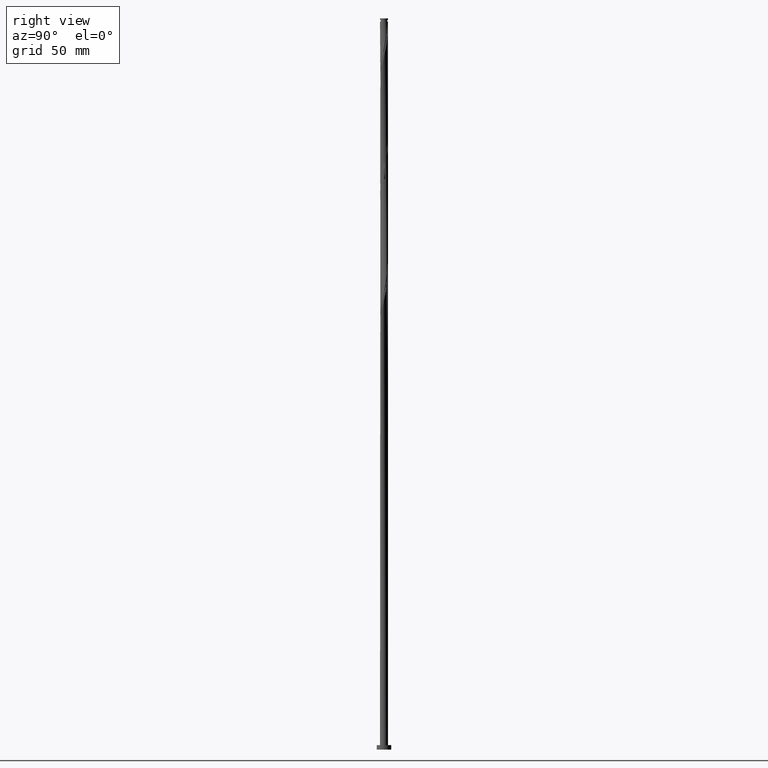
[diagram: clean part render]
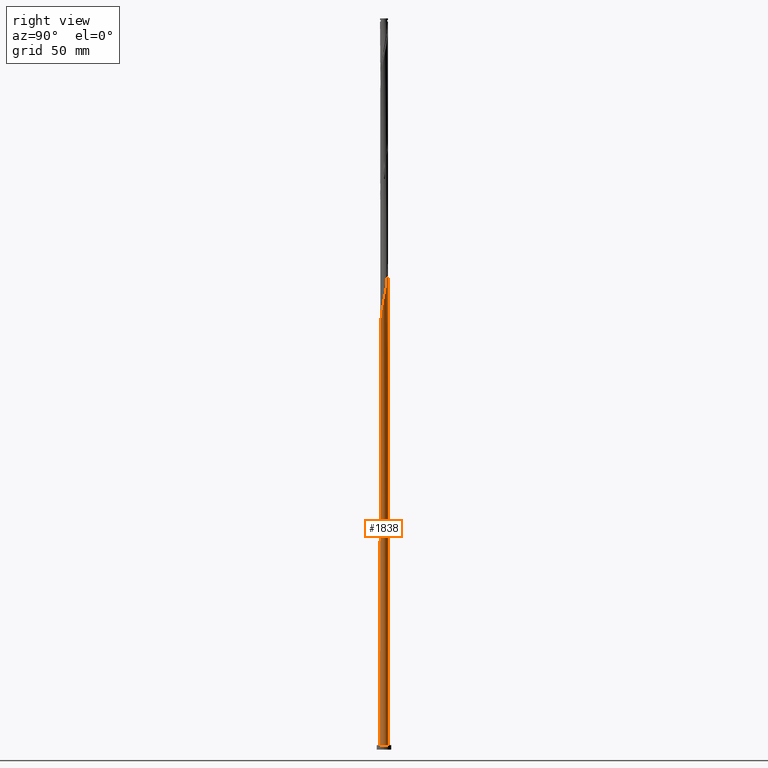
[diagram: same view with one face highlighted and labeled with its STEP entity id]
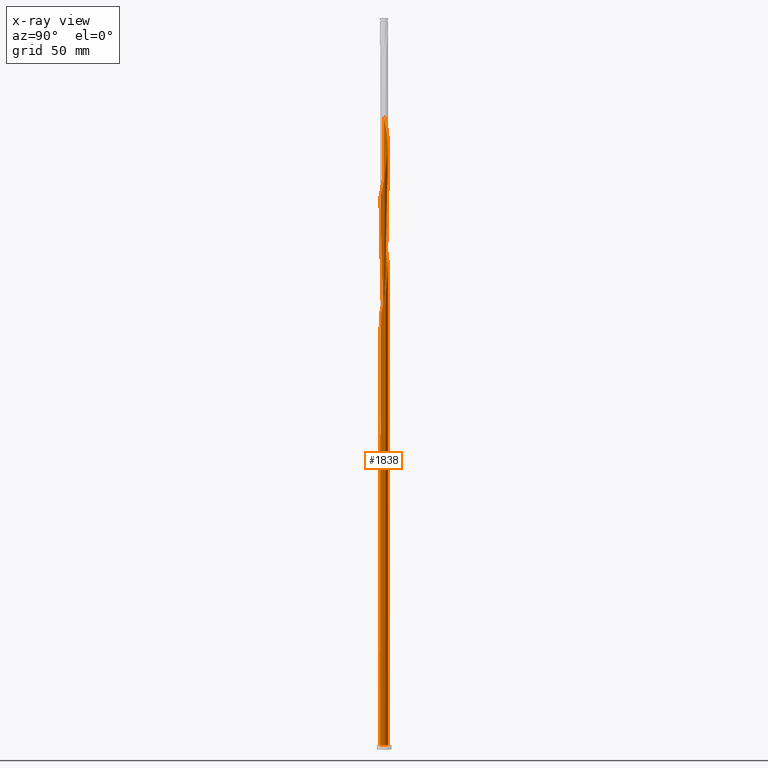
[diagram: x-ray of the same camera — body ghosted, the highlighted face saturated]
A machine part, right view. The second image highlights one B-rep face of the part: STEP entity #1838.
The next image is the same camera in x-ray: the body ghosted, the highlighted face saturated — about 0% of this face is hidden behind the body in this view.
In plain terms, the highlighted cylindrical surface (bore or boss wall) has radius 2.75 mm, axis along (-0, -0, -1).
Its self-contained STEP definition (entity closure, byte-faithful):
#3 = CARTESIAN_POINT ( 'NONE',  ( -0.5472430904086456049, 2.695000000000002505, 247.8195904447323414 ) ) ;
#4 = CARTESIAN_POINT ( 'NONE',  ( -1.312315348961077710, 2.431807739867426044, 418.3925071113991407 ) ) ;
#19 = DIRECTION ( 'NONE',  ( -1.000000000000000000, 0.000000000000000000, 0.000000000000000000 ) ) ;
#25 = EDGE_CURVE ( 'NONE', #1028, #1947, #87, .T. ) ;
#38 = EDGE_CURVE ( 'NONE', #1028, #1778, #1923, .T. ) ;
#43 = CARTESIAN_POINT ( 'NONE',  ( 2.748898739951862513, 0.2818087583610887070, 309.0175071113990271 ) ) ;
#54 = CARTESIAN_POINT ( 'NONE',  ( -0.2598896582776717423, -2.751057582879404606, 285.5800071113989702 ) ) ;
#64 = DIRECTION ( 'NONE',  ( 1.000000000000000000, 0.000000000000000000, 0.000000000000000000 ) ) ;
#70 = CARTESIAN_POINT ( 'NONE',  ( -0.5472430904086452719, 2.695000000000002061, 414.4862571113990839 ) ) ;
#78 = VERTEX_POINT ( 'NONE', #296 ) ;
#87 = CIRCLE ( 'NONE', #469, 2.750000000000000000 ) ;
#89 = ORIENTED_EDGE ( 'NONE', *, *, #1688, .F. ) ;
#103 = CARTESIAN_POINT ( 'NONE',  ( -2.544842576412060797, 1.042245777770506088, 344.1737571113989134 ) ) ;
#110 = ORIENTED_EDGE ( 'NONE', *, *, #148, .T. ) ;
#148 = EDGE_CURVE ( 'NONE', #717, #942, #1680, .T. ) ;
#151 = CARTESIAN_POINT ( 'NONE',  ( -1.292890894444388650, 2.442190327116361193, 256.9341737780657127 ) ) ;
#155 = CARTESIAN_POINT ( 'NONE',  ( -1.536918540760689789, 2.280434475942259898, 419.6945904447322846 ) ) ;
#171 = DIRECTION ( 'NONE',  ( -0.000000000000000000, -0.000000000000000000, -1.000000000000000000 ) ) ;
#184 = CARTESIAN_POINT ( 'NONE',  ( 1.042245777770505866, 2.544842576412060797, 323.3404237780655990 ) ) ;
#196 = CARTESIAN_POINT ( 'NONE',  ( -0.5257451596871463018, -2.699276204293580506, 367.6112571113990271 ) ) ;
#197 = CARTESIAN_POINT ( 'NONE',  ( 2.749978161415632449, 0.01095955004170716569, 307.7154237780657127 ) ) ;
#201 = CARTESIAN_POINT ( 'NONE',  ( -0.5257451596871463018, -2.699276204293580506, 284.2779237780656558 ) ) ;
#212 = CARTESIAN_POINT ( 'NONE',  ( -2.280434475942259898, -1.536918540760689789, 273.8612571113990271 ) ) ;
#226 =( BOUNDED_CURVE ( )  B_SPLINE_CURVE ( 2, ( #1640, #1211, #282, #1222, #274, #1064, #1957, #1517, #892, #1081, #603, #584, #1679, #151, #1201, #919, #1815, #1366, #1795, #434, #1805 ),
 .UNSPECIFIED., .F., .T. ) 
 B_SPLINE_CURVE_WITH_KNOTS ( ( 3, 2, 2, 2, 2, 2, 2, 2, 2, 2, 3 ),
 ( 0.9295286902180871502, 0.9296875000000000000, 0.9375000000000000000, 0.9453125000000000000, 0.9531250000000000000, 0.9609375000000000000, 0.9687500000000000000, 0.9765625000000000000, 0.9843750000000000000, 0.9921875000000000000, 1.000000000000000000 ),
 .UNSPECIFIED. ) 
 CURVE ( )  GEOMETRIC_REPRESENTATION_ITEM ( )  RATIONAL_B_SPLINE_CURVE ( ( 0.9089165573359829775, 0.9090019243628878476, 0.9090909090909797818, 0.9047133878838858889, 0.9090909090909797818, 0.9047133878838858889, 0.9090909090909797818, 0.9047133878838858889, 0.9090909090909797818, 0.9047133878838858889, 0.9090909090909797818, 0.9047133878838858889, 0.9090909090909797818, 0.9047133878838858889, 0.9090909090909797818, 0.9047133878838858889, 0.9090909090909797818, 0.9047133878838858889, 0.9090909090909797818, 0.9047133878838858889, 0.9090909090909797818 ) ) 
 REPRESENTATION_ITEM ( '' )  );
#227 = CARTESIAN_POINT ( 'NONE',  ( 2.699276204293580506, -0.5257451596871476340, 305.1112571113989702 ) ) ;
#232 = DIRECTION ( 'NONE',  ( -0.000000000000000000, -0.000000000000000000, -1.000000000000000000 ) ) ;
#245 = CARTESIAN_POINT ( 'NONE',  ( 0.5472430904086464931, 2.694999999999998508, 247.8195904447323414 ) ) ;
#246 = CARTESIAN_POINT ( 'NONE',  ( 2.442190327116362969, -1.292890894444393091, 384.5383404447323983 ) ) ;
#266 = CARTESIAN_POINT ( 'NONE',  ( -2.750000000000003997, -0.005479796779213286229, 266.0224136879194816 ) ) ;
#274 = CARTESIAN_POINT ( 'NONE',  ( -2.694999999999998952, 0.5472430904086462711, 268.6529237780657127 ) ) ;
#277 = ORIENTED_EDGE ( 'NONE', *, *, #822, .F. ) ;
#279 = CARTESIAN_POINT ( 'NONE',  ( -2.641101260048143828, -0.8126774224562044457, 353.2883404447323983 ) ) ;
#282 = CARTESIAN_POINT ( 'NONE',  ( -2.749978161415628009, 0.01095955004170898195, 271.2570904447323414 ) ) ;
#285 = CARTESIAN_POINT ( 'NONE',  ( -2.647494825707756849, 0.7916006610966208612, 262.1425071113990839 ) ) ;
#293 = FACE_OUTER_BOUND ( 'NONE', #1693, .T. ) ;
#296 = CARTESIAN_POINT ( 'NONE',  ( -2.750000000000003553, -4.752766352566343433E-17, 432.6627268000688673 ) ) ;
#301 = CARTESIAN_POINT ( 'NONE',  ( 2.699276204293580506, -0.5257451596871476340, 388.4445904447322278 ) ) ;
#305 = CARTESIAN_POINT ( 'NONE',  ( 2.280434475942259898, 1.536918540760690233, 315.5279237780656558 ) ) ;
#323 = CARTESIAN_POINT ( 'NONE',  ( 2.750000000000000000, 0.000000000000000000, 3.000000000000000000 ) ) ;
#330 = CARTESIAN_POINT ( 'NONE',  ( -2.442190327116363857, 1.292890894444391536, 426.2050071113990839 ) ) ;
#339 = CARTESIAN_POINT ( 'NONE',  ( -2.750000000000003553, -4.752766352566343433E-17, 432.6627268000688673 ) ) ;
#350 = CARTESIAN_POINT ( 'NONE',  ( -1.042245777770505866, -2.544842576412060797, 281.6737571113990271 ) ) ;
#357 = CARTESIAN_POINT ( 'NONE',  ( 1.062496385708641355, -2.536454499957784936, 375.4237571113990271 ) ) ;
#365 = CARTESIAN_POINT ( 'NONE',  ( 2.442190327116362969, -1.292890894444393091, 301.2050071113990839 ) ) ;
#401 = CARTESIAN_POINT ( 'NONE',  ( -0.5472430904086452719, 2.695000000000002061, 331.1529237780657127 ) ) ;
#410 = CARTESIAN_POINT ( 'NONE',  ( -0.01095955004170705641, 2.749978161415632449, 328.5487571113990271 ) ) ;
#414 = CARTESIAN_POINT ( 'NONE',  ( 1.536918540760689789, -2.280434475942259898, 378.0279237780657127 ) ) ;
#420 = ORIENTED_EDGE ( 'NONE', *, *, #25, .T. ) ;
#422 = CARTESIAN_POINT ( 'NONE',  ( -1.761521732560302533, 2.129061212017095528, 337.6633404447323414 ) ) ;
#430 = CARTESIAN_POINT ( 'NONE',  ( -0.8126774224562042237, 2.641101260048143828, 332.4550071113990839 ) ) ;
#434 = CARTESIAN_POINT ( 'NONE',  ( 0.2818087583610884295, 2.748898739951858072, 249.1216737780656274 ) ) ;
#449 = CARTESIAN_POINT ( 'NONE',  ( 2.647494825707756849, -0.7916006610966210832, 387.1425071113990271 ) ) ;
#461 = CARTESIAN_POINT ( 'NONE',  ( -2.750000000000000000, 0.000000000000000000, 500.0000000000000000 ) ) ;
#469 = AXIS2_PLACEMENT_3D ( 'NONE', #1248, #1388, #618 ) ;
#492 = CARTESIAN_POINT ( 'NONE',  ( 2.129061212017095972, 1.761521732560302311, 400.1633404447323983 ) ) ;
#495 = CARTESIAN_POINT ( 'NONE',  ( -1.518693475112311120, -2.292612075483183798, 362.4029237780655990 ) ) ;
#496 = CARTESIAN_POINT ( 'NONE',  ( 1.312315348961076822, -2.431807739867426932, 293.3925071113990271 ) ) ;
#499 = CARTESIAN_POINT ( 'NONE',  ( 1.744496055780230481, 2.143033823850004627, 402.7675071113990839 ) ) ;
#509 = CARTESIAN_POINT ( 'NONE',  ( 0.2818087583610876523, -2.748898739951862069, 371.5175071113990271 ) ) ;
#510 = CARTESIAN_POINT ( 'NONE',  ( 2.431807739867426932, 1.312315348961076822, 314.2258404447323983 ) ) ;
#527 = CARTESIAN_POINT ( 'NONE',  ( 0.01095955004170748141, -2.749978161415632893, 370.2154237780657127 ) ) ;
#529 = CARTESIAN_POINT ( 'NONE',  ( 0.000000000000000000, 0.000000000000000000, 3.000000000000000000 ) ) ;
#530 = CARTESIAN_POINT ( 'NONE',  ( 1.062496385708641355, -2.536454499957784936, 292.0904237780657695 ) ) ;
#542 = ORIENTED_EDGE ( 'NONE', *, *, #1431, .T. ) ;
#550 = CARTESIAN_POINT ( 'NONE',  ( -2.749978161415632893, -0.01095955004170822214, 266.0487571113990271 ) ) ;
#563 = CARTESIAN_POINT ( 'NONE',  ( -1.536918540760689789, 2.280434475942259898, 336.3612571113990839 ) ) ;
#581 = CARTESIAN_POINT ( 'NONE',  ( -0.2818087583610885960, 2.748898739951862513, 329.8508404447323983 ) ) ;
#584 = CARTESIAN_POINT ( 'NONE',  ( -1.744496055780227595, 2.143033823850001074, 259.5383404447323414 ) ) ;
#589 = CARTESIAN_POINT ( 'NONE',  ( -2.292612075483183798, 1.518693475112311120, 341.5695904447322846 ) ) ;
#596 = VERTEX_POINT ( 'NONE', #1858 ) ;
#603 = CARTESIAN_POINT ( 'NONE',  ( -1.936778633898660118, 1.952277778205150804, 260.8404237780657127 ) ) ;
#615 = CARTESIAN_POINT ( 'NONE',  ( 2.129061212017095972, 1.761521732560302311, 316.8300071113991407 ) ) ;
#618 = DIRECTION ( 'NONE',  ( -1.000000000000000000, 0.000000000000000000, 0.000000000000000000 ) ) ;
#636 = CARTESIAN_POINT ( 'NONE',  ( 0.7916006610966210832, 2.647494825707756849, 324.6425071113990271 ) ) ;
#660 = CARTESIAN_POINT ( 'NONE',  ( 0.8126774224562042237, -2.641101260048143828, 374.1216737780657695 ) ) ;
#661 = CARTESIAN_POINT ( 'NONE',  ( 1.536918540760689789, -2.280434475942259898, 294.6945904447322846 ) ) ;
#673 = CARTESIAN_POINT ( 'NONE',  ( 0.01095955004170748141, -2.749978161415632893, 286.8820904447322846 ) ) ;
#680 = CARTESIAN_POINT ( 'NONE',  ( -1.042245777770505866, -2.544842576412060797, 365.0070904447323983 ) ) ;
#681 = CARTESIAN_POINT ( 'NONE',  ( 2.292612075483183798, -1.518693475112311786, 299.9029237780656558 ) ) ;
#695 =( BOUNDED_CURVE ( )  B_SPLINE_CURVE ( 2, ( #1943, #266, #550, #1615, #1358, #1202, #1806, #1018, #212, #819, #1698, #1709, #1290, #1462, #350, #1141, #201, #54, #673, #1889, #986, #837, #530, #496, #661, #824, #1738, #1592, #681, #365, #833, #1439, #227, #964, #197, #43, #1298, #1865, #1875, #510, #305, #615, #1556, #1233, #792, #781, #184, #636, #1104, #953, #410, #581, #401, #430, #1022, #1050, #563, #422, #1352, #1031, #589, #1645, #103, #1610, #719, #1503, #1791, #1042, #889, #279, #1363, #1962, #1764, #1737, #832, #1855, #495, #1255, #680, #803, #196, #813, #527, #509, #1146, #660, #357, #974, #414, #1913, #1495, #1355, #1342, #246, #1242, #449, #301, #1381, #1954, #899, #1980, #1229, #927, #1534, #1506, #492, #1214, #499, #1706, #1280, #1118, #1529, #1095, #1200, #1956, #1336, #70, #1699, #796, #4, #155, #1249, #1237, #1099, #1109, #330, #1836, #1398, #1260, #946, #339 ),
 .UNSPECIFIED., .F., .T. ) 
 B_SPLINE_CURVE_WITH_KNOTS ( ( 3, 2, 2, 2, 2, 2, 2, 2, 2, 2, 2, 2, 2, 2, 2, 2, 2, 2, 2, 2, 2, 2, 2, 2, 2, 2, 2, 2, 2, 2, 2, 2, 2, 2, 2, 2, 2, 2, 2, 2, 2, 2, 2, 2, 2, 2, 2, 2, 2, 2, 2, 2, 2, 2, 2, 2, 2, 2, 2, 2, 2, 2, 2, 2, 2, 3 ),
 ( 0.05452869021808699757, 0.05468750000000000000, 0.06250000000000000000, 0.07031250000000000000, 0.07812500000000000000, 0.08593750000000000000, 0.09375000000000000000, 0.1015625000000000000, 0.1093750000000000000, 0.1171875000000000000, 0.1250000000000000000, 0.1328125000000000000, 0.1406250000000000000, 0.1484375000000000000, 0.1562500000000000000, 0.1640625000000000000, 0.1718750000000000000, 0.1796875000000000000, 0.1875000000000000000, 0.1953125000000000000, 0.2031250000000000000, 0.2109375000000000000, 0.2187500000000000000, 0.2265625000000000000, 0.2343750000000000000, 0.2421875000000000000, 0.2500000000000000000, 0.2578125000000000000, 0.2656250000000000000, 0.2734375000000000000, 0.2812500000000000000, 0.2890625000000000000, 0.2968750000000000000, 0.3046875000000000000, 0.3125000000000000000, 0.3203125000000000000, 0.3281250000000000000, 0.3359375000000000000, 0.3437500000000000000, 0.3515625000000000000, 0.3593750000000000000, 0.3671875000000000000, 0.3750000000000000000, 0.3828125000000000000, 0.3906250000000000000, 0.3984375000000000000, 0.4062500000000000000, 0.4140625000000000000, 0.4218750000000000000, 0.4296875000000000000, 0.4375000000000000000, 0.4453125000000000000, 0.4531250000000000000, 0.4609375000000000000, 0.4687500000000000000, 0.4765625000000000000, 0.4843750000000000000, 0.4921875000000000000, 0.5000000000000000000, 0.5078125000000000000, 0.5156250000000000000, 0.5234375000000000000, 0.5312500000000000000, 0.5390625000000000000, 0.5468750000000000000, 0.5545286902180871502 ),
 .UNSPECIFIED. ) 
 CURVE ( )  GEOMETRIC_REPRESENTATION_ITEM ( )  RATIONAL_B_SPLINE_CURVE ( ( 0.9089165573359899719, 0.9090019243628948420, 0.9090909090909867762, 0.9047133878838926613, 0.9090909090909867762, 0.9047133878838926613, 0.9090909090909867762, 0.9047133878838926613, 0.9090909090909867762, 0.9047133878838926613, 0.9090909090909867762, 0.9047133878838926613, 0.9090909090909867762, 0.9047133878838926613, 0.9090909090909867762, 0.9047133878838926613, 0.9090909090909867762, 0.9047133878838926613, 0.9090909090909867762, 0.9047133878838926613, 0.9090909090909867762, 0.9047133878838926613, 0.9090909090909867762, 0.9047133878838926613, 0.9090909090909867762, 0.9047133878838926613, 0.9090909090909867762, 0.9047133878838926613, 0.9090909090909867762, 0.9047133878838926613, 0.9090909090909867762, 0.9047133878838926613, 0.9090909090909867762, 0.9047133878838926613, 0.9090909090909867762, 0.9047133878838926613, 0.9090909090909867762, 0.9047133878838926613, 0.9090909090909867762, 0.9047133878838926613, 0.9090909090909867762, 0.9047133878838926613, 0.9090909090909867762, 0.9047133878838926613, 0.9090909090909867762, 0.9047133878838926613, 0.9090909090909867762, 0.9047133878838926613, 0.9090909090909867762, 0.9047133878838926613, 0.9090909090909867762, 0.9047133878838926613, 0.9090909090909867762, 0.9047133878838926613, 0.9090909090909867762, 0.9047133878838926613, 0.9090909090909867762, 0.9047133878838926613, 0.9090909090909867762, 0.9047133878838926613, 0.9090909090909867762, 0.9047133878838926613, 0.9090909090909867762, 0.9047133878838926613, 0.9090909090909867762, 0.9047133878838926613, 0.9090909090909867762, 0.9047133878838926613, 0.9090909090909867762, 0.9047133878838926613, 0.9090909090909867762, 0.9047133878838926613, 0.9090909090909867762, 0.9047133878838926613, 0.9090909090909867762, 0.9047133878838926613, 0.9090909090909867762, 0.9047133878838926613, 0.9090909090909867762, 0.9047133878838926613, 0.9090909090909867762, 0.9047133878838926613, 0.9090909090909867762, 0.9047133878838926613, 0.9090909090909867762, 0.9047133878838926613, 0.9090909090909867762, 0.9047133878838926613, 0.9090909090909867762, 0.9047133878838926613, 0.9090909090909867762, 0.9047133878838926613, 0.9090909090909867762, 0.9047133878838926613, 0.9090909090909867762, 0.9047133878838926613, 0.9090909090909867762, 0.9047133878838926613, 0.9090909090909867762, 0.9047133878838926613, 0.9090909090909867762, 0.9047133878838926613, 0.9090909090909867762, 0.9047133878838926613, 0.9090909090909867762, 0.9047133878838926613, 0.9090909090909867762, 0.9047133878838926613, 0.9090909090909867762, 0.9047133878838926613, 0.9090909090909867762, 0.9047133878838926613, 0.9090909090909867762, 0.9047133878838926613, 0.9090909090909867762, 0.9047133878838926613, 0.9090909090909867762, 0.9047133878838926613, 0.9090909090909867762, 0.9047133878838926613, 0.9090909090909867762, 0.9047133878838926613, 0.9090909090909867762, 0.9047133878838926613, 0.9090909090909867762, 0.9047133878838926613, 0.9090909090909867762, 0.9047133878838926613, 0.9090909090909867762, 0.9048023726119844845, 0.9089165573359901940 ) ) 
 REPRESENTATION_ITEM ( '' )  );
#715 = LINE ( 'NONE', #994, #1259 ) ;
#717 = VERTEX_POINT ( 'NONE', #323 ) ;
#719 = CARTESIAN_POINT ( 'NONE',  ( -2.699276204293580506, 0.5257451596871460797, 346.7779237780657127 ) ) ;
#759 = LINE ( 'NONE', #461, #1566 ) ;
#781 = CARTESIAN_POINT ( 'NONE',  ( 1.292890894444393091, 2.442190327116362969, 322.0383404447323414 ) ) ;
#792 = CARTESIAN_POINT ( 'NONE',  ( 1.518693475112311786, 2.292612075483183798, 320.7362571113989702 ) ) ;
#796 = CARTESIAN_POINT ( 'NONE',  ( -1.062496385708640911, 2.536454499957784936, 417.0904237780656558 ) ) ;
#803 = CARTESIAN_POINT ( 'NONE',  ( -0.7916006610966208612, -2.647494825707756849, 366.3091737780657695 ) ) ;
#813 = CARTESIAN_POINT ( 'NONE',  ( -0.2598896582776717423, -2.751057582879404606, 368.9133404447323414 ) ) ;
#819 = CARTESIAN_POINT ( 'NONE',  ( -2.129061212017095528, -1.761521732560302977, 275.1633404447323414 ) ) ;
#822 = EDGE_CURVE ( 'NONE', #1778, #78, #695, .T. ) ;
#824 = CARTESIAN_POINT ( 'NONE',  ( 1.761521732560302533, -2.129061212017095528, 295.9966737780657695 ) ) ;
#827 = CARTESIAN_POINT ( 'NONE',  ( 0.000000000000000000, 0.000000000000000000, 3.000000000000000000 ) ) ;
#832 = CARTESIAN_POINT ( 'NONE',  ( -1.936778633898663005, -1.952277778205152581, 359.7987571113988565 ) ) ;
#833 = CARTESIAN_POINT ( 'NONE',  ( 2.544842576412060797, -1.042245777770505866, 302.5070904447323983 ) ) ;
#837 = CARTESIAN_POINT ( 'NONE',  ( 0.8126774224562042237, -2.641101260048143828, 290.7883404447323983 ) ) ;
#889 = CARTESIAN_POINT ( 'NONE',  ( -2.695000000000002061, -0.5472430904086459380, 351.9862571113989702 ) ) ;
#892 = CARTESIAN_POINT ( 'NONE',  ( -2.280434475942255457, 1.536918540760688234, 263.4445904447323414 ) ) ;
#899 = CARTESIAN_POINT ( 'NONE',  ( 2.748898739951862513, 0.2818087583610887070, 392.3508404447323414 ) ) ;
#910 = CYLINDRICAL_SURFACE ( 'NONE', #1219, 2.750000000000000000 ) ;
#919 = CARTESIAN_POINT ( 'NONE',  ( -0.7916006610966186408, 2.647494825707753296, 254.3300071113990271 ) ) ;
#922 = CARTESIAN_POINT ( 'NONE',  ( -1.312315348961077710, 2.431807739867426044, 251.7258404447323414 ) ) ;
#927 = CARTESIAN_POINT ( 'NONE',  ( 2.536454499957784936, 1.062496385708641133, 396.2570904447323983 ) ) ;
#936 = CARTESIAN_POINT ( 'NONE',  ( -2.750000000000000000, 0.000000000000000000, 3.000000000000000000 ) ) ;
#942 = VERTEX_POINT ( 'NONE', #936 ) ;
#946 = CARTESIAN_POINT ( 'NONE',  ( -2.750000000000004441, 0.2653194910546983198, 431.3867466946527998 ) ) ;
#953 = CARTESIAN_POINT ( 'NONE',  ( 0.2598896582776720754, 2.751057582879404606, 327.2466737780657127 ) ) ;
#964 = CARTESIAN_POINT ( 'NONE',  ( 2.751057582879404606, -0.2598896582776718533, 306.4133404447323983 ) ) ;
#974 = CARTESIAN_POINT ( 'NONE',  ( 1.312315348961076822, -2.431807739867426932, 376.7258404447323983 ) ) ;
#986 = CARTESIAN_POINT ( 'NONE',  ( 0.5472430904086458270, -2.695000000000002061, 289.4862571113989702 ) ) ;
#994 = CARTESIAN_POINT ( 'NONE',  ( -2.750000000000000000, 0.000000000000000000, 500.0000000000000000 ) ) ;
#1018 = CARTESIAN_POINT ( 'NONE',  ( -2.431807739867426044, -1.312315348961077044, 272.5591737780657695 ) ) ;
#1022 = CARTESIAN_POINT ( 'NONE',  ( -1.062496385708640911, 2.536454499957784936, 333.7570904447322278 ) ) ;
#1028 = VERTEX_POINT ( 'NONE', #1149 ) ;
#1031 = CARTESIAN_POINT ( 'NONE',  ( -2.143033823850004627, 1.744496055780230481, 340.2675071113990839 ) ) ;
#1042 = CARTESIAN_POINT ( 'NONE',  ( -2.748898739951862069, -0.2818087583610878744, 350.6841737780657127 ) ) ;
#1050 = CARTESIAN_POINT ( 'NONE',  ( -1.312315348961077710, 2.431807739867426044, 335.0591737780657127 ) ) ;
#1059 = CARTESIAN_POINT ( 'NONE',  ( -1.761521732560302533, 2.129061212017095528, 254.3300071113989986 ) ) ;
#1064 = CARTESIAN_POINT ( 'NONE',  ( -2.641101260048139832, 0.8126774224562037796, 267.3508404447323983 ) ) ;
#1081 = CARTESIAN_POINT ( 'NONE',  ( -2.129061212017091087, 1.761521732560300535, 262.1425071113990839 ) ) ;
#1084 = CARTESIAN_POINT ( 'NONE',  ( -2.750000000000003109, 0.2653194910547036489, 264.7200800279861710 ) ) ;
#1095 = CARTESIAN_POINT ( 'NONE',  ( 0.5257451596871476340, 2.699276204293580506, 409.2779237780656558 ) ) ;
#1099 = CARTESIAN_POINT ( 'NONE',  ( -2.143033823850004627, 1.744496055780230481, 423.6008404447323983 ) ) ;
#1104 = CARTESIAN_POINT ( 'NONE',  ( 0.5257451596871476340, 2.699276204293580506, 325.9445904447323414 ) ) ;
#1109 = CARTESIAN_POINT ( 'NONE',  ( -2.292612075483183798, 1.518693475112311120, 424.9029237780656558 ) ) ;
#1118 = CARTESIAN_POINT ( 'NONE',  ( 1.042245777770505866, 2.544842576412060797, 406.6737571113990271 ) ) ;
#1128 = ORIENTED_EDGE ( 'NONE', *, *, #38, .F. ) ;
#1133 = CIRCLE ( 'NONE', #1948, 2.750000000000000000 ) ;
#1141 = CARTESIAN_POINT ( 'NONE',  ( -0.7916006610966208612, -2.647494825707756849, 282.9758404447324551 ) ) ;
#1146 = CARTESIAN_POINT ( 'NONE',  ( 0.5472430904086458270, -2.695000000000002061, 372.8195904447323414 ) ) ;
#1149 = CARTESIAN_POINT ( 'NONE',  ( -0.5472430904086456049, 2.695000000000002505, 247.8195904447323414 ) ) ;
#1200 = CARTESIAN_POINT ( 'NONE',  ( 0.2598896582776720754, 2.751057582879404606, 410.5800071113989702 ) ) ;
#1201 = CARTESIAN_POINT ( 'NONE',  ( -1.042245777770503645, 2.544842576412056800, 255.6320904447323983 ) ) ;
#1202 = CARTESIAN_POINT ( 'NONE',  ( -2.641101260048143828, -0.8126774224562044457, 269.9550071113990839 ) ) ;
#1211 = CARTESIAN_POINT ( 'NONE',  ( -2.749999999999999556, 0.005479796779219328270, 271.2834338682120006 ) ) ;
#1212 = AXIS2_PLACEMENT_3D ( 'NONE', #827, #1708, #64 ) ;
#1214 = CARTESIAN_POINT ( 'NONE',  ( 1.936778633898663449, 1.952277778205152359, 401.4654237780655990 ) ) ;
#1219 = AXIS2_PLACEMENT_3D ( 'NONE', #1527, #171, #19 ) ;
#1222 = CARTESIAN_POINT ( 'NONE',  ( -2.748898739951858072, 0.2818087583610882629, 269.9550071113990271 ) ) ;
#1229 = CARTESIAN_POINT ( 'NONE',  ( 2.641101260048144272, 0.8126774224562030025, 394.9550071113990839 ) ) ;
#1233 = CARTESIAN_POINT ( 'NONE',  ( 1.744496055780230481, 2.143033823850004627, 319.4341737780657127 ) ) ;
#1237 = CARTESIAN_POINT ( 'NONE',  ( -1.952277778205153025, 1.936778633898663005, 422.2987571113989702 ) ) ;
#1242 = CARTESIAN_POINT ( 'NONE',  ( 2.544842576412060797, -1.042245777770505866, 385.8404237780657127 ) ) ;
#1248 = CARTESIAN_POINT ( 'NONE',  ( 0.000000000000000000, 0.000000000000000000, 247.8195904447323414 ) ) ;
#1249 = CARTESIAN_POINT ( 'NONE',  ( -1.761521732560302533, 2.129061212017095528, 420.9966737780657127 ) ) ;
#1255 = CARTESIAN_POINT ( 'NONE',  ( -1.292890894444391536, -2.442190327116363857, 363.7050071113991407 ) ) ;
#1259 = VECTOR ( 'NONE', #232, 1000.000000000000000 ) ;
#1260 = CARTESIAN_POINT ( 'NONE',  ( -2.699276204293580506, 0.5257451596871460797, 430.1112571113990271 ) ) ;
#1280 = CARTESIAN_POINT ( 'NONE',  ( 1.292890894444393091, 2.442190327116362969, 405.3716737780657127 ) ) ;
#1290 = CARTESIAN_POINT ( 'NONE',  ( -1.518693475112311120, -2.292612075483183798, 279.0695904447322846 ) ) ;
#1298 = CARTESIAN_POINT ( 'NONE',  ( 2.695000000000002061, 0.5472430904086454939, 310.3195904447322846 ) ) ;
#1325 = EDGE_CURVE ( 'NONE', #78, #596, #715, .T. ) ;
#1336 = CARTESIAN_POINT ( 'NONE',  ( -0.2818087583610885960, 2.748898739951862513, 413.1841737780657127 ) ) ;
#1342 = CARTESIAN_POINT ( 'NONE',  ( 2.292612075483183798, -1.518693475112311786, 383.2362571113989702 ) ) ;
#1352 = CARTESIAN_POINT ( 'NONE',  ( -1.952277778205153025, 1.936778633898663005, 338.9654237780657127 ) ) ;
#1355 = CARTESIAN_POINT ( 'NONE',  ( 2.143033823850003294, -1.744496055780231147, 381.9341737780657695 ) ) ;
#1358 = CARTESIAN_POINT ( 'NONE',  ( -2.695000000000002061, -0.5472430904086459380, 268.6529237780657127 ) ) ;
#1363 = CARTESIAN_POINT ( 'NONE',  ( -2.536454499957784936, -1.062496385708640911, 354.5904237780657695 ) ) ;
#1366 = CARTESIAN_POINT ( 'NONE',  ( -0.2598896582776707986, 2.751057582879400609, 251.7258404447323983 ) ) ;
#1369 = CARTESIAN_POINT ( 'NONE',  ( -1.062496385708640911, 2.536454499957784936, 250.4237571113989702 ) ) ;
#1375 = DIRECTION ( 'NONE',  ( -0.000000000000000000, -0.000000000000000000, -1.000000000000000000 ) ) ;
#1378 = CARTESIAN_POINT ( 'NONE',  ( -0.8126774224562042237, 2.641101260048143828, 249.1216737780656842 ) ) ;
#1381 = CARTESIAN_POINT ( 'NONE',  ( 2.751057582879404606, -0.2598896582776718533, 389.7466737780657127 ) ) ;
#1388 = DIRECTION ( 'NONE',  ( 0.000000000000000000, -0.000000000000000000, -1.000000000000000000 ) ) ;
#1398 = CARTESIAN_POINT ( 'NONE',  ( -2.647494825707756849, 0.7916006610966208612, 428.8091737780656558 ) ) ;
#1431 = EDGE_CURVE ( 'NONE', #942, #717, #1133, .T. ) ;
#1439 = CARTESIAN_POINT ( 'NONE',  ( 2.647494825707756849, -0.7916006610966210832, 303.8091737780657127 ) ) ;
#1462 = CARTESIAN_POINT ( 'NONE',  ( -1.292890894444391536, -2.442190327116363857, 280.3716737780657127 ) ) ;
#1495 = CARTESIAN_POINT ( 'NONE',  ( 1.952277778205152581, -1.936778633898663449, 380.6320904447321709 ) ) ;
#1503 = CARTESIAN_POINT ( 'NONE',  ( -2.751057582879404606, 0.2598896582776715758, 348.0800071113990271 ) ) ;
#1506 = CARTESIAN_POINT ( 'NONE',  ( 2.280434475942259898, 1.536918540760690233, 398.8612571113989134 ) ) ;
#1511 = CARTESIAN_POINT ( 'NONE',  ( -2.442190327116363857, 1.292890894444391536, 259.5383404447323414 ) ) ;
#1517 = CARTESIAN_POINT ( 'NONE',  ( -2.431807739867421159, 1.312315348961075268, 264.7466737780657127 ) ) ;
#1527 = CARTESIAN_POINT ( 'NONE',  ( 0.000000000000000000, 0.000000000000000000, 500.0000000000000000 ) ) ;
#1529 = CARTESIAN_POINT ( 'NONE',  ( 0.7916006610966210832, 2.647494825707756849, 407.9758404447324551 ) ) ;
#1531 = CARTESIAN_POINT ( 'NONE',  ( -2.143033823850004627, 1.744496055780230481, 256.9341737780656558 ) ) ;
#1534 = CARTESIAN_POINT ( 'NONE',  ( 2.431807739867426932, 1.312315348961076822, 397.5591737780657695 ) ) ;
#1556 = CARTESIAN_POINT ( 'NONE',  ( 1.936778633898663449, 1.952277778205152359, 318.1320904447322846 ) ) ;
#1566 = VECTOR ( 'NONE', #1375, 1000.000000000000000 ) ;
#1577 = DIRECTION ( 'NONE',  ( 1.000000000000000000, 0.000000000000000000, 0.000000000000000000 ) ) ;
#1592 = CARTESIAN_POINT ( 'NONE',  ( 2.143033823850003294, -1.744496055780231147, 298.6008404447324551 ) ) ;
#1610 = CARTESIAN_POINT ( 'NONE',  ( -2.647494825707756849, 0.7916006610966208612, 345.4758404447323414 ) ) ;
#1615 = CARTESIAN_POINT ( 'NONE',  ( -2.748898739951862069, -0.2818087583610878744, 267.3508404447323414 ) ) ;
#1640 = CARTESIAN_POINT ( 'NONE',  ( -2.750000000000000888, 8.331319841557538890E-16, 271.3097874227292436 ) ) ;
#1643 = CARTESIAN_POINT ( 'NONE',  ( -2.699276204293580506, 0.5257451596871460797, 263.4445904447323414 ) ) ;
#1645 = CARTESIAN_POINT ( 'NONE',  ( -2.442190327116363857, 1.292890894444391536, 342.8716737780658264 ) ) ;
#1648 = CARTESIAN_POINT ( 'NONE',  ( -2.750000000000003553, -4.752766352566343433E-17, 265.9960601334021817 ) ) ;
#1652 = CARTESIAN_POINT ( 'NONE',  ( -2.544842576412060797, 1.042245777770506088, 260.8404237780656558 ) ) ;
#1679 = CARTESIAN_POINT ( 'NONE',  ( -1.518693475112308677, 2.292612075483181133, 258.2362571113990839 ) ) ;
#1680 = CIRCLE ( 'NONE', #1212, 2.750000000000000000 ) ;
#1683 = CARTESIAN_POINT ( 'NONE',  ( -1.952277778205153025, 1.936778633898663005, 255.6320904447322846 ) ) ;
#1688 = EDGE_CURVE ( 'NONE', #1778, #942, #759, .T. ) ;
#1693 = EDGE_LOOP ( 'NONE', ( #1931, #277, #1770, #542, #110, #89, #1128, #420, #1726 ) ) ;
#1698 = CARTESIAN_POINT ( 'NONE',  ( -1.936778633898663005, -1.952277778205152581, 276.4654237780655990 ) ) ;
#1699 = CARTESIAN_POINT ( 'NONE',  ( -0.8126774224562042237, 2.641101260048143828, 415.7883404447323414 ) ) ;
#1706 = CARTESIAN_POINT ( 'NONE',  ( 1.518693475112311786, 2.292612075483183798, 404.0695904447323414 ) ) ;
#1708 = DIRECTION ( 'NONE',  ( 0.000000000000000000, 0.000000000000000000, 1.000000000000000000 ) ) ;
#1709 = CARTESIAN_POINT ( 'NONE',  ( -1.744496055780231147, -2.143033823850003738, 277.7675071113989702 ) ) ;
#1726 = ORIENTED_EDGE ( 'NONE', *, *, #1755, .F. ) ;
#1737 = CARTESIAN_POINT ( 'NONE',  ( -2.129061212017095528, -1.761521732560302977, 358.4966737780658264 ) ) ;
#1738 = CARTESIAN_POINT ( 'NONE',  ( 1.952277778205152581, -1.936778633898663449, 297.2987571113989702 ) ) ;
#1755 = EDGE_CURVE ( 'NONE', #596, #1947, #226, .T. ) ;
#1764 = CARTESIAN_POINT ( 'NONE',  ( -2.280434475942259898, -1.536918540760689789, 357.1945904447323414 ) ) ;
#1770 = ORIENTED_EDGE ( 'NONE', *, *, #1688, .T. ) ;
#1778 = VERTEX_POINT ( 'NONE', #1648 ) ;
#1791 = CARTESIAN_POINT ( 'NONE',  ( -2.749978161415632893, -0.01095955004170822214, 349.3820904447323414 ) ) ;
#1795 = CARTESIAN_POINT ( 'NONE',  ( 0.01095955004170887440, 2.749978161415628009, 250.4237571113990839 ) ) ;
#1805 = CARTESIAN_POINT ( 'NONE',  ( 0.5472430904086464931, 2.694999999999998952, 247.8195904447323414 ) ) ;
#1806 = CARTESIAN_POINT ( 'NONE',  ( -2.536454499957784936, -1.062496385708640911, 271.2570904447322846 ) ) ;
#1809 = CARTESIAN_POINT ( 'NONE',  ( -1.536918540760689789, 2.280434475942259898, 253.0279237780657127 ) ) ;
#1815 = CARTESIAN_POINT ( 'NONE',  ( -0.5257451596871448585, 2.699276204293575621, 253.0279237780657695 ) ) ;
#1818 = CARTESIAN_POINT ( 'NONE',  ( -2.292612075483183798, 1.518693475112311120, 258.2362571113990271 ) ) ;
#1836 = CARTESIAN_POINT ( 'NONE',  ( -2.544842576412060797, 1.042245777770506088, 427.5070904447322846 ) ) ;
#1838 = ADVANCED_FACE ( 'NONE', ( #293 ), #910, .T. ) ;
#1855 = CARTESIAN_POINT ( 'NONE',  ( -1.744496055780231147, -2.143033823850003738, 361.1008404447322846 ) ) ;
#1858 = CARTESIAN_POINT ( 'NONE',  ( -2.750000000000000444, 8.331319841557538890E-16, 271.3097874227292436 ) ) ;
#1865 = CARTESIAN_POINT ( 'NONE',  ( 2.641101260048144272, 0.8126774224562030025, 311.6216737780657695 ) ) ;
#1875 = CARTESIAN_POINT ( 'NONE',  ( 2.536454499957784936, 1.062496385708641133, 312.9237571113989702 ) ) ;
#1877 = DIRECTION ( 'NONE',  ( 0.000000000000000000, 0.000000000000000000, 1.000000000000000000 ) ) ;
#1889 = CARTESIAN_POINT ( 'NONE',  ( 0.2818087583610876523, -2.748898739951862069, 288.1841737780657695 ) ) ;
#1913 = CARTESIAN_POINT ( 'NONE',  ( 1.761521732560302533, -2.129061212017095528, 379.3300071113989134 ) ) ;
#1923 =( BOUNDED_CURVE ( )  B_SPLINE_CURVE ( 2, ( #3, #1378, #1369, #922, #1809, #1059, #1683, #1531, #1818, #1511, #1652, #285, #1643, #1084, #1968 ),
 .UNSPECIFIED., .F., .T. ) 
 B_SPLINE_CURVE_WITH_KNOTS ( ( 3, 2, 2, 2, 2, 2, 2, 3 ),
 ( 0.000000000000000000, 0.007812500000000000000, 0.01562500000000000000, 0.02343750000000000347, 0.03125000000000000000, 0.03906250000000000000, 0.04687500000000000694, 0.05452869021808699757 ),
 .UNSPECIFIED. ) 
 CURVE ( )  GEOMETRIC_REPRESENTATION_ITEM ( )  RATIONAL_B_SPLINE_CURVE ( ( 0.9090909090909867762, 0.9047133878838926613, 0.9090909090909867762, 0.9047133878838926613, 0.9090909090909867762, 0.9047133878838926613, 0.9090909090909867762, 0.9047133878838926613, 0.9090909090909867762, 0.9047133878838926613, 0.9090909090909867762, 0.9047133878838926613, 0.9090909090909867762, 0.9048023726119845955, 0.9089165573359899719 ) ) 
 REPRESENTATION_ITEM ( '' )  );
#1931 = ORIENTED_EDGE ( 'NONE', *, *, #1325, .F. ) ;
#1943 = CARTESIAN_POINT ( 'NONE',  ( -2.750000000000003553, -4.752766352566344049E-17, 265.9960601334021817 ) ) ;
#1947 = VERTEX_POINT ( 'NONE', #245 ) ;
#1948 = AXIS2_PLACEMENT_3D ( 'NONE', #529, #1877, #1577 ) ;
#1954 = CARTESIAN_POINT ( 'NONE',  ( 2.749978161415632449, 0.01095955004170716569, 391.0487571113989702 ) ) ;
#1956 = CARTESIAN_POINT ( 'NONE',  ( -0.01095955004170705641, 2.749978161415632449, 411.8820904447322846 ) ) ;
#1957 = CARTESIAN_POINT ( 'NONE',  ( -2.536454499957780495, 1.062496385708639801, 266.0487571113990271 ) ) ;
#1962 = CARTESIAN_POINT ( 'NONE',  ( -2.431807739867426044, -1.312315348961077044, 355.8925071113990271 ) ) ;
#1968 = CARTESIAN_POINT ( 'NONE',  ( -2.750000000000003553, -4.752766352566344049E-17, 265.9960601334021817 ) ) ;
#1980 = CARTESIAN_POINT ( 'NONE',  ( 2.695000000000002061, 0.5472430904086454939, 393.6529237780656558 ) ) ;